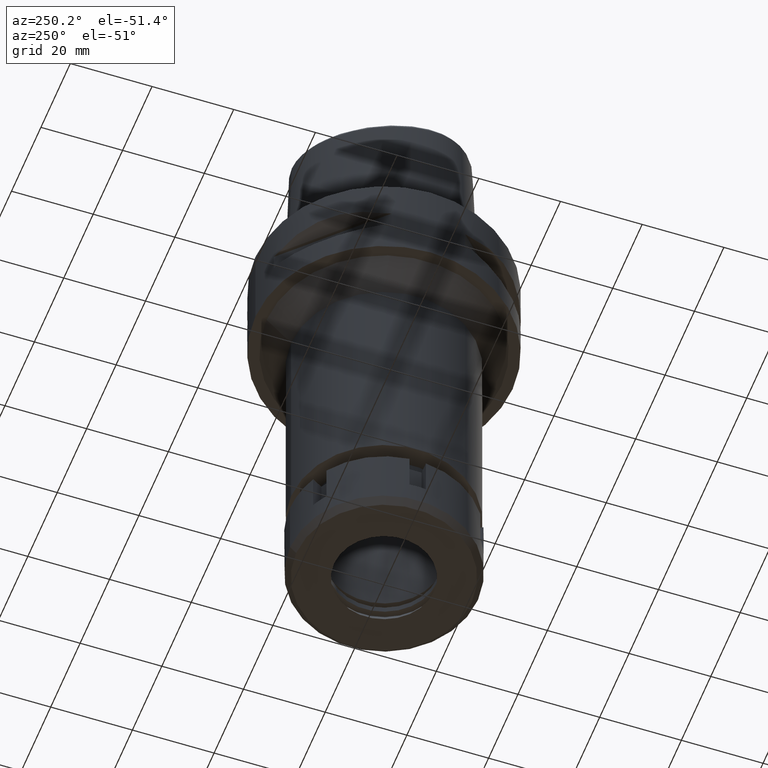
[diagram: clean part render]
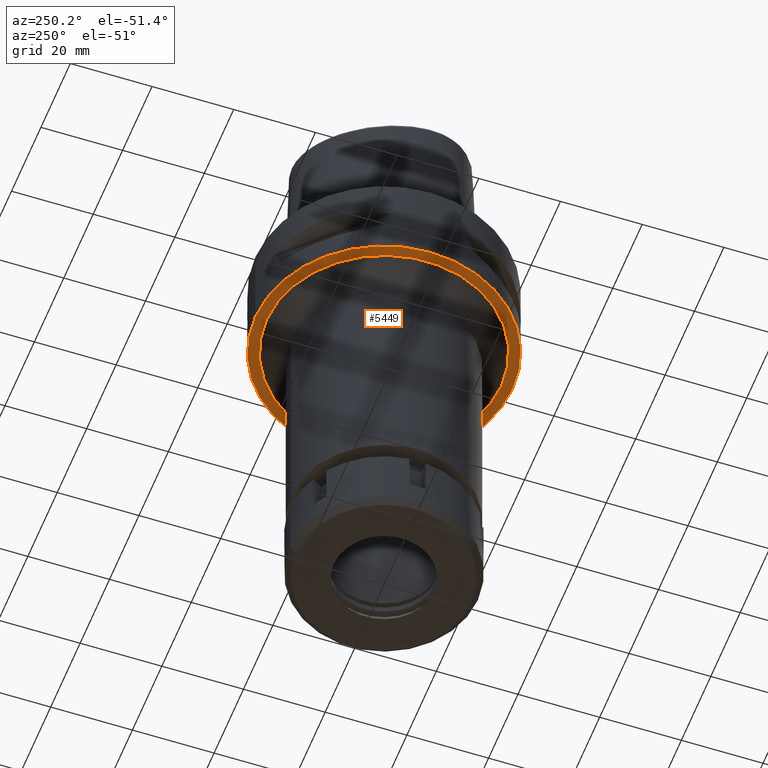
[diagram: same view with one face highlighted and labeled with its STEP entity id]
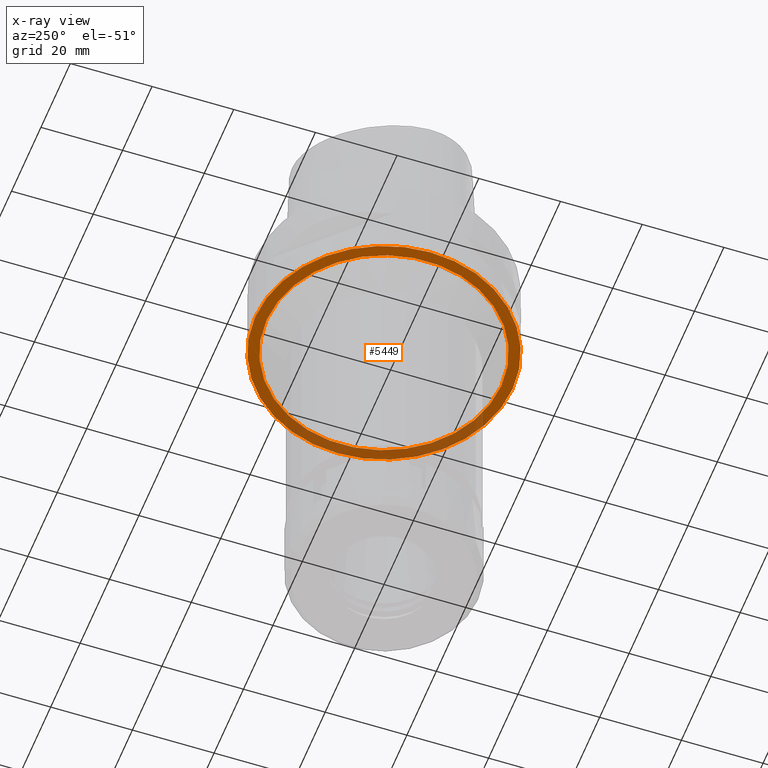
[diagram: x-ray of the same camera — body ghosted, the highlighted face saturated]
A machine part, auxiliary view. The second image highlights one B-rep face of the part: STEP entity #5449.
The next image is the same camera in x-ray: the body ghosted, the highlighted face saturated — about 27% of this face is hidden behind the body in this view.
In plain terms, the highlighted planar face has unit normal (0, 0, -1).
Its self-contained STEP definition (entity closure, byte-faithful):
#189 = DIRECTION ( 'NONE',  ( 0.0000000000000000000, 0.0000000000000000000, -1.000000000000000000 ) ) ;
#193 = DIRECTION ( 'NONE',  ( 0.0000000000000000000, -1.000000000000000000, 0.0000000000000000000 ) ) ;
#285 = CARTESIAN_POINT ( 'NONE',  ( 0.0000000000000000000, 0.0000000000000000000, -22.00000000000000000 ) ) ;
#402 = CARTESIAN_POINT ( 'NONE',  ( 0.0000000000000000000, -31.50000000000000000, -22.00000000000000000 ) ) ;
#403 = AXIS2_PLACEMENT_3D ( 'NONE', #2625, #3175, #3642 ) ;
#530 = CARTESIAN_POINT ( 'NONE',  ( 0.0000000000000000000, 1.284042168905999827E-14, -22.00000000000000000 ) ) ;
#598 = CIRCLE ( 'NONE', #2676, 28.75000000000000000 ) ;
#641 = EDGE_CURVE ( 'NONE', #1205, #5279, #2379, .T. ) ;
#681 = CIRCLE ( 'NONE', #403, 31.50000000000000000 ) ;
#694 = CIRCLE ( 'NONE', #1951, 31.50000000000000000 ) ;
#727 = FACE_BOUND ( 'NONE', #1615, .T. ) ;
#1044 = AXIS2_PLACEMENT_3D ( 'NONE', #1516, #189, #1484 ) ;
#1072 = PLANE ( 'NONE',  #4187 ) ;
#1202 = CARTESIAN_POINT ( 'NONE',  ( 0.0000000000000000000, 31.50000000000000000, -22.00000000000000000 ) ) ;
#1205 = VERTEX_POINT ( 'NONE', #5347 ) ;
#1484 = DIRECTION ( 'NONE',  ( 0.0000000000000000000, 1.000000000000000000, 0.0000000000000000000 ) ) ;
#1516 = CARTESIAN_POINT ( 'NONE',  ( 0.0000000000000000000, 0.0000000000000000000, -22.00000000000000000 ) ) ;
#1615 = EDGE_LOOP ( 'NONE', ( #2001, #4892 ) ) ;
#1658 = ORIENTED_EDGE ( 'NONE', *, *, #3455, .F. ) ;
#1691 = CARTESIAN_POINT ( 'NONE',  ( 0.0000000000000000000, 0.0000000000000000000, -22.00000000000000000 ) ) ;
#1712 = DIRECTION ( 'NONE',  ( 0.0000000000000000000, 0.0000000000000000000, -1.000000000000000000 ) ) ;
#1951 = AXIS2_PLACEMENT_3D ( 'NONE', #530, #2253, #5166 ) ;
#2001 = ORIENTED_EDGE ( 'NONE', *, *, #641, .F. ) ;
#2253 = DIRECTION ( 'NONE',  ( 0.0000000000000000000, 0.0000000000000000000, 1.000000000000000000 ) ) ;
#2379 = CIRCLE ( 'NONE', #1044, 28.75000000000000000 ) ;
#2424 = EDGE_CURVE ( 'NONE', #3756, #2674, #681, .T. ) ;
#2625 = CARTESIAN_POINT ( 'NONE',  ( 0.0000000000000000000, 1.284042168905999827E-14, -22.00000000000000000 ) ) ;
#2674 = VERTEX_POINT ( 'NONE', #1202 ) ;
#2676 = AXIS2_PLACEMENT_3D ( 'NONE', #1691, #1712, #3004 ) ;
#3004 = DIRECTION ( 'NONE',  ( 0.0000000000000000000, -1.000000000000000000, 0.0000000000000000000 ) ) ;
#3175 = DIRECTION ( 'NONE',  ( 0.0000000000000000000, 0.0000000000000000000, 1.000000000000000000 ) ) ;
#3455 = EDGE_CURVE ( 'NONE', #2674, #3756, #694, .T. ) ;
#3551 = EDGE_CURVE ( 'NONE', #5279, #1205, #598, .T. ) ;
#3642 = DIRECTION ( 'NONE',  ( 0.0000000000000000000, -1.000000000000000000, 0.0000000000000000000 ) ) ;
#3704 = ORIENTED_EDGE ( 'NONE', *, *, #2424, .F. ) ;
#3756 = VERTEX_POINT ( 'NONE', #402 ) ;
#4144 = DIRECTION ( 'NONE',  ( 0.0000000000000000000, 0.0000000000000000000, -1.000000000000000000 ) ) ;
#4187 = AXIS2_PLACEMENT_3D ( 'NONE', #285, #4144, #193 ) ;
#4427 = CARTESIAN_POINT ( 'NONE',  ( 0.0000000000000000000, -28.75000000000000000, -22.00000000000000000 ) ) ;
#4432 = EDGE_LOOP ( 'NONE', ( #1658, #3704 ) ) ;
#4892 = ORIENTED_EDGE ( 'NONE', *, *, #3551, .F. ) ;
#4908 = FACE_OUTER_BOUND ( 'NONE', #4432, .T. ) ;
#5166 = DIRECTION ( 'NONE',  ( 0.0000000000000000000, 1.000000000000000000, 0.0000000000000000000 ) ) ;
#5279 = VERTEX_POINT ( 'NONE', #4427 ) ;
#5347 = CARTESIAN_POINT ( 'NONE',  ( 0.0000000000000000000, 28.75000000000000000, -22.00000000000000000 ) ) ;
#5449 = ADVANCED_FACE ( 'NONE', ( #4908, #727 ), #1072, .T. ) ;